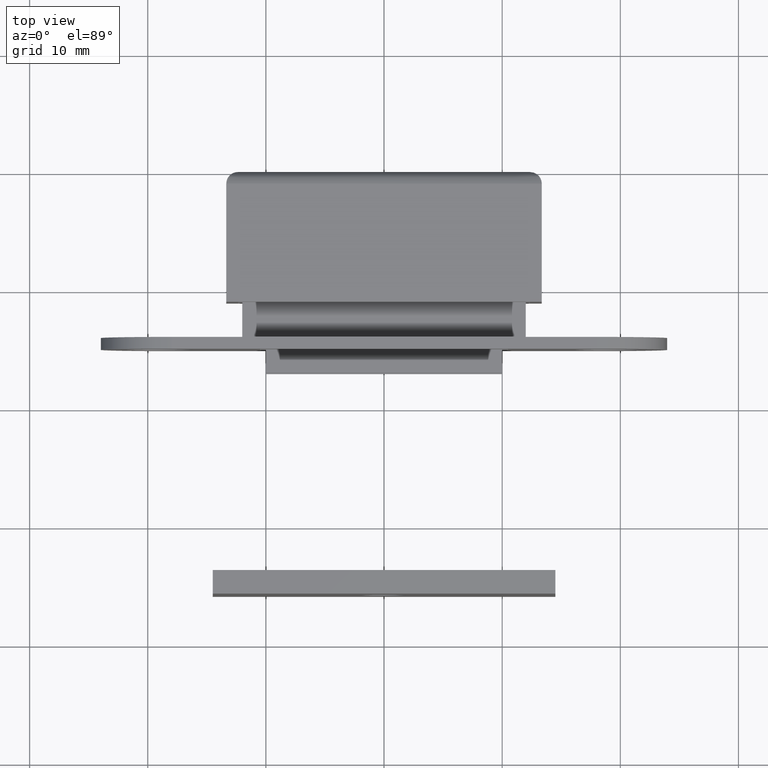
[diagram: clean part render]
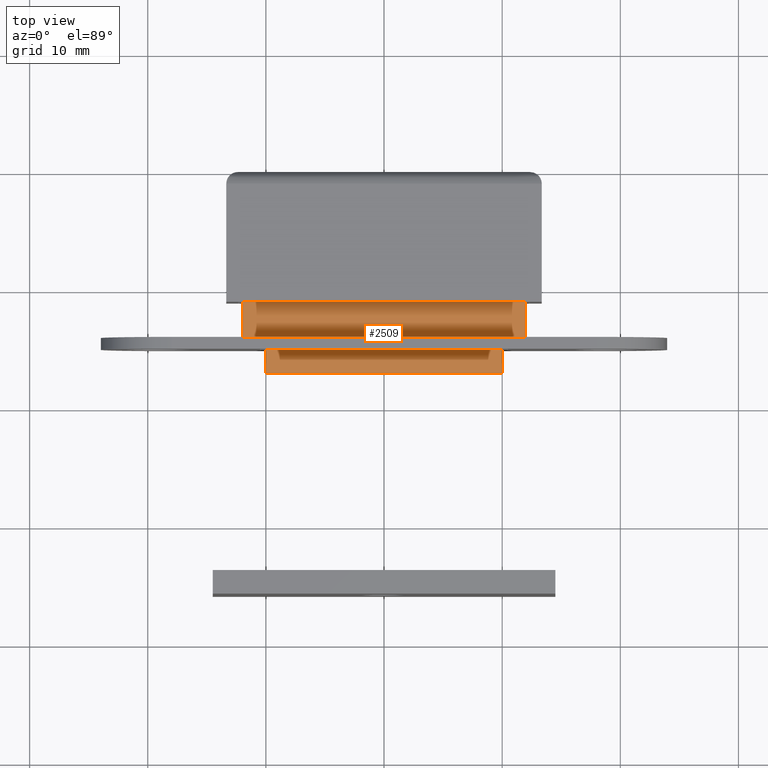
[diagram: same view with one face highlighted and labeled with its STEP entity id]
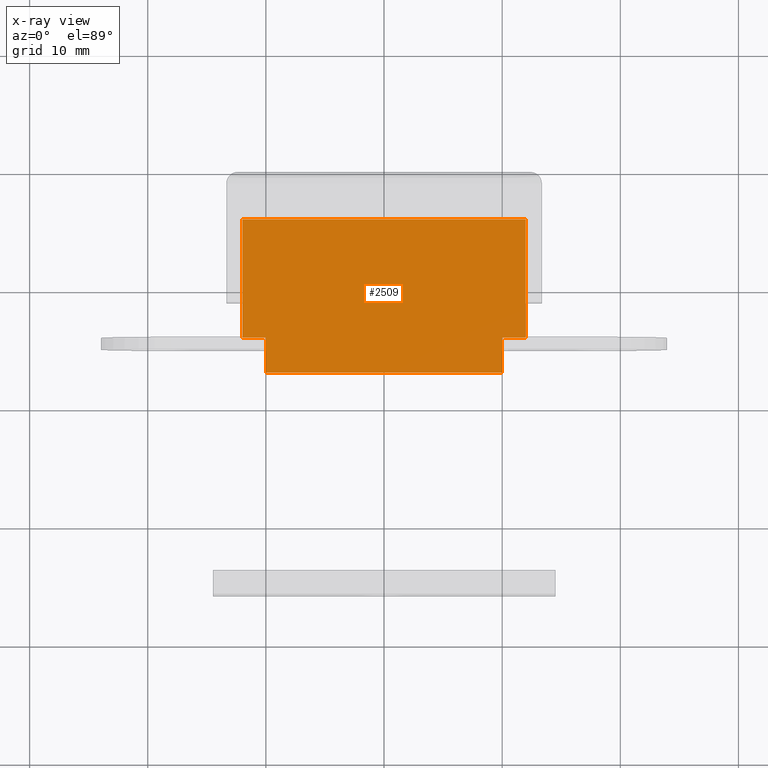
[diagram: x-ray of the same camera — body ghosted, the highlighted face saturated]
A machine part, top view. The second image highlights one B-rep face of the part: STEP entity #2509.
The next image is the same camera in x-ray: the body ghosted, the highlighted face saturated — about 0% of this face is hidden behind the body in this view.
In plain terms, the highlighted face is a freeform B-spline surface patch.
Its self-contained STEP definition (entity closure, byte-faithful):
#2446=CARTESIAN_POINT('',(-13.198798853583350,-3.350650025196418,3.0));
#2447=CARTESIAN_POINT('',(13.198799497313461,-3.350650025196418,3.0));
#2448=CARTESIAN_POINT('',(-13.198798853583350,-17.649350323490658,3.0));
#2449=CARTESIAN_POINT('',(13.198799497313461,-17.649350323490658,3.0));
#2450=B_SPLINE_SURFACE_WITH_KNOTS('',1,1,((#2446,#2448),(#2447,#2449)),.UNSPECIFIED.,.F.,.F.,.U.,(2,2),(2,2),(0.0,26.397598350896800),(0.0,14.298700298294239),.UNSPECIFIED.);
#2451=CARTESIAN_POINT('',(10.0,-14.0,3.0));
#2452=VERTEX_POINT('',#2451);
#2453=CARTESIAN_POINT('',(10.0,-17.0,3.0));
#2454=VERTEX_POINT('',#2453);
#2455=CARTESIAN_POINT('',(10.0,-14.0,3.0));
#2456=CARTESIAN_POINT('',(10.0,-17.0,3.0));
#2457=QUASI_UNIFORM_CURVE('',1,(#2455,#2456),.UNSPECIFIED.,.F.,.U.);
#2458=EDGE_CURVE('',#2452,#2454,#2457,.T.);
#2459=ORIENTED_EDGE('',*,*,#2458,.F.);
#2460=CARTESIAN_POINT('',(11.999999000000001,-14.0,3.0));
#2461=VERTEX_POINT('',#2460);
#2462=CARTESIAN_POINT('',(11.999999000000001,-14.0,3.0));
#2463=CARTESIAN_POINT('',(10.0,-14.0,3.0));
#2464=QUASI_UNIFORM_CURVE('',1,(#2462,#2463),.UNSPECIFIED.,.F.,.U.);
#2465=EDGE_CURVE('',#2461,#2452,#2464,.T.);
#2466=ORIENTED_EDGE('',*,*,#2465,.F.);
#2467=CARTESIAN_POINT('',(11.999999000000001,-3.999999999999901,3.0));
#2468=VERTEX_POINT('',#2467);
#2469=CARTESIAN_POINT('',(11.999999000000001,-3.999999999999901,3.0));
#2470=CARTESIAN_POINT('',(11.999999000000001,-14.0,3.0));
#2471=QUASI_UNIFORM_CURVE('',1,(#2469,#2470),.UNSPECIFIED.,.F.,.U.);
#2472=EDGE_CURVE('',#2468,#2461,#2471,.T.);
#2473=ORIENTED_EDGE('',*,*,#2472,.F.);
#2474=CARTESIAN_POINT('',(-11.999999000000001,-3.999999999999901,3.0));
#2475=VERTEX_POINT('',#2474);
#2476=CARTESIAN_POINT('',(-11.999999000000001,-3.999999999999901,3.0));
#2477=CARTESIAN_POINT('',(11.999999000000001,-3.999999999999901,3.0));
#2478=QUASI_UNIFORM_CURVE('',1,(#2476,#2477),.UNSPECIFIED.,.F.,.U.);
#2479=EDGE_CURVE('',#2475,#2468,#2478,.T.);
#2480=ORIENTED_EDGE('',*,*,#2479,.F.);
#2481=CARTESIAN_POINT('',(-11.999999000000001,-14.0,3.0));
#2482=VERTEX_POINT('',#2481);
#2483=CARTESIAN_POINT('',(-11.999999000000001,-14.0,3.0));
#2484=CARTESIAN_POINT('',(-11.999999000000001,-3.999999999999901,3.0));
#2485=QUASI_UNIFORM_CURVE('',1,(#2483,#2484),.UNSPECIFIED.,.F.,.U.);
#2486=EDGE_CURVE('',#2482,#2475,#2485,.T.);
#2487=ORIENTED_EDGE('',*,*,#2486,.F.);
#2488=CARTESIAN_POINT('',(-10.0,-14.0,3.0));
#2489=VERTEX_POINT('',#2488);
#2490=CARTESIAN_POINT('',(-10.0,-14.0,3.0));
#2491=CARTESIAN_POINT('',(-11.999999000000001,-14.0,3.0));
#2492=QUASI_UNIFORM_CURVE('',1,(#2490,#2491),.UNSPECIFIED.,.F.,.U.);
#2493=EDGE_CURVE('',#2489,#2482,#2492,.T.);
#2494=ORIENTED_EDGE('',*,*,#2493,.F.);
#2495=CARTESIAN_POINT('',(-10.0,-17.0,3.0));
#2496=VERTEX_POINT('',#2495);
#2497=CARTESIAN_POINT('',(-10.0,-17.0,3.0));
#2498=CARTESIAN_POINT('',(-10.0,-14.0,3.0));
#2499=QUASI_UNIFORM_CURVE('',1,(#2497,#2498),.UNSPECIFIED.,.F.,.U.);
#2500=EDGE_CURVE('',#2496,#2489,#2499,.T.);
#2501=ORIENTED_EDGE('',*,*,#2500,.F.);
#2502=CARTESIAN_POINT('',(10.0,-17.0,3.0));
#2503=CARTESIAN_POINT('',(-10.0,-17.0,3.0));
#2504=QUASI_UNIFORM_CURVE('',1,(#2502,#2503),.UNSPECIFIED.,.F.,.U.);
#2505=EDGE_CURVE('',#2454,#2496,#2504,.T.);
#2506=ORIENTED_EDGE('',*,*,#2505,.F.);
#2507=EDGE_LOOP('',(#2459,#2466,#2473,#2480,#2487,#2494,#2501,#2506));
#2508=FACE_OUTER_BOUND('',#2507,.T.);
#2509=ADVANCED_FACE('',(#2508),#2450,.F.);